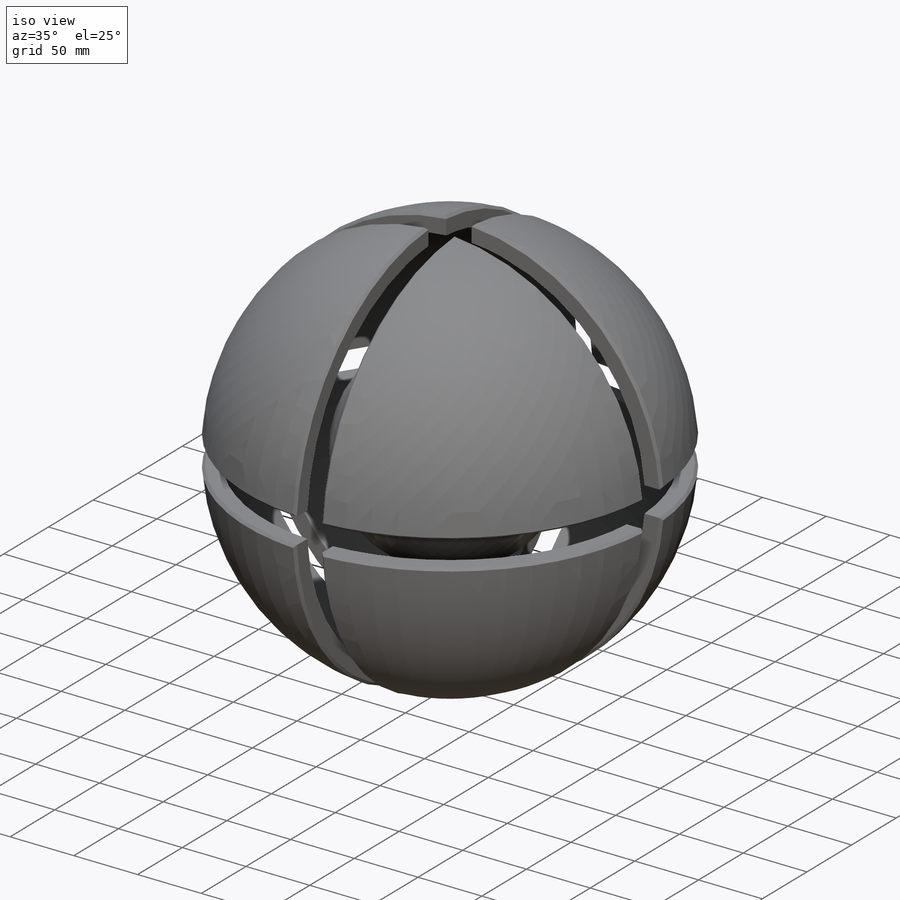
[diagram: iso view]
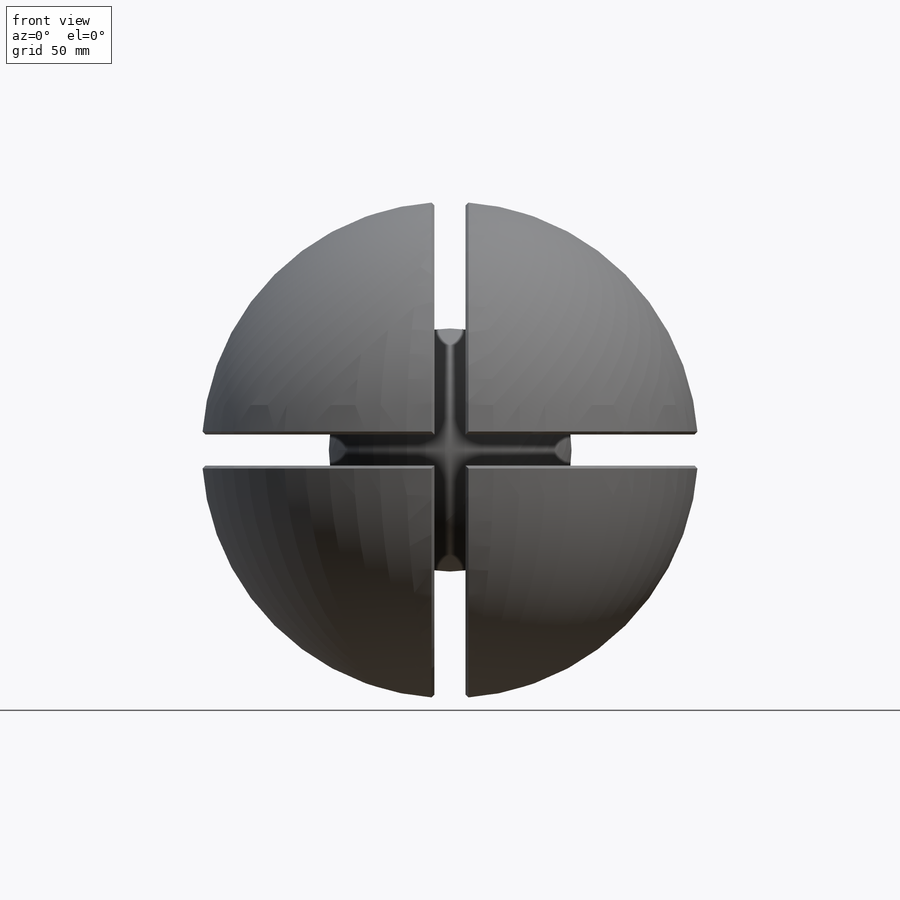
[diagram: front view]
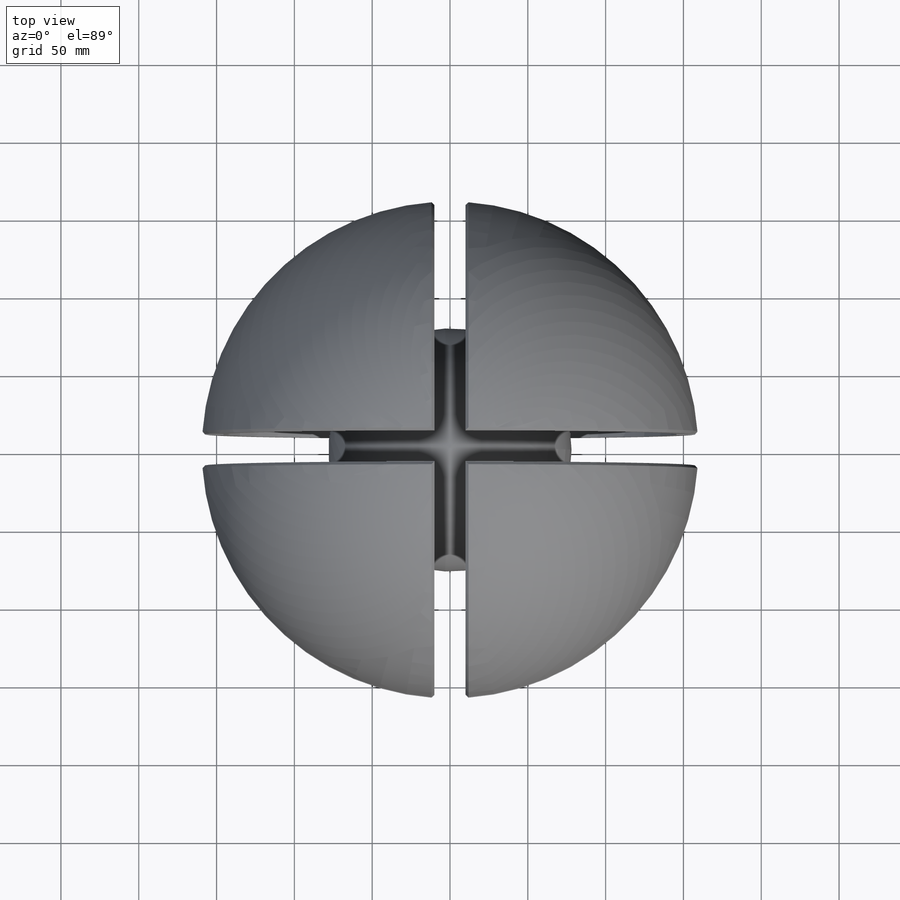
[diagram: top view]
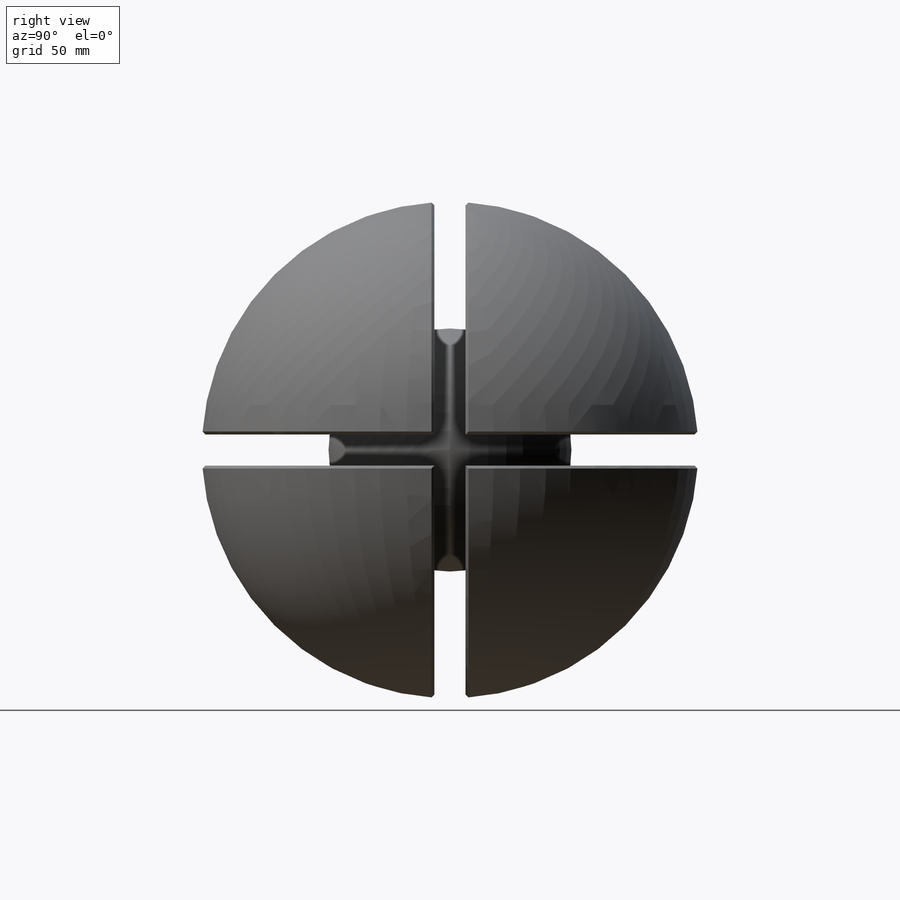
[diagram: right view]
SOLIDWORKS PART (.sldprt)
format: sldprt  version: not decoded by parser v0  size: 502,272 bytes
history: native  units: mm
features: chamfer x8, sketch x4, revolve x2, cut_extrude x2, material x1 (+11 scaffold rows collapsed)
feature tree (28):
  scaffold x11  (default folders/planes/origin — collapsed)
  material  "Material <not specified>"
  sketch  "Sketch1"
  revolve  "Revolve1"  Angle=360deg
  sketch  "Sketch2"  dims[D1=10.0mm D2=10.0mm]
  cut_extrude  "Cut-Extrude1"  Depth=300mm
  sketch  "Sketch3"  dims[D1=10.0mm]
  cut_extrude  "Cut-Extrude2"  Depth=300mm
  chamfer  "Chamfer16"  Distance=2mm Angle=45deg
  chamfer  "Chamfer17"  Distance=2mm Angle=45deg
  chamfer  "Chamfer18"  Distance=2mm Angle=45deg
  chamfer  "Chamfer19"  Distance=2mm Angle=45deg
  chamfer  "Chamfer20"  Distance=2mm Angle=45deg
  chamfer  "Chamfer21"  Distance=2mm Angle=45deg
  chamfer  "Chamfer22"  Distance=2mm Angle=45deg
  chamfer  "Chamfer23"  Distance=2mm Angle=45deg
  sketch  "Sketch4"
  revolve  "Revolve2"  Angle=360deg
decode coverage: 14 of 16 modeling features carry decoded parameters
note: suppression state not decoded; provenance and decode notes live in map.json
